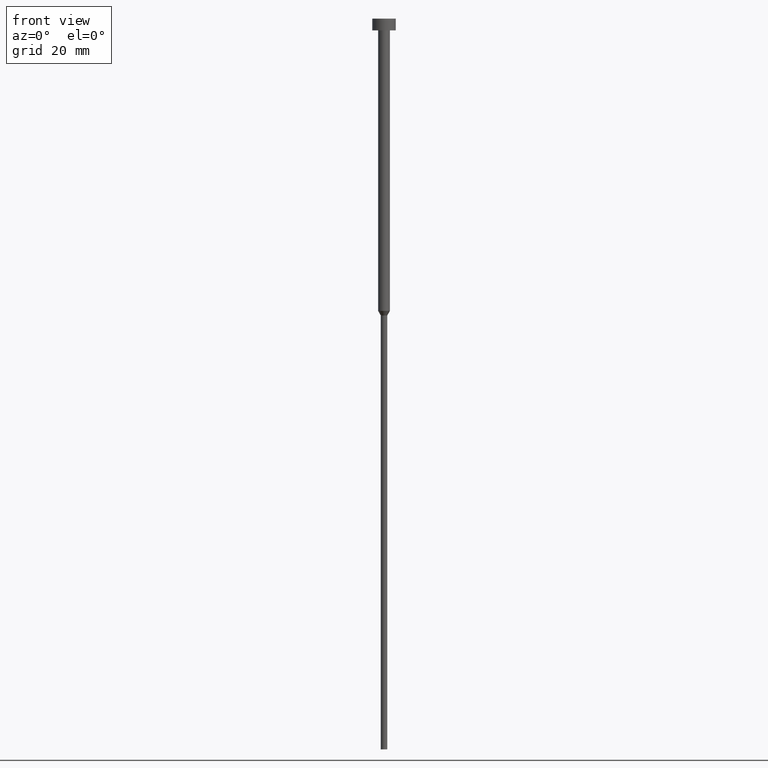
[diagram: clean part render]
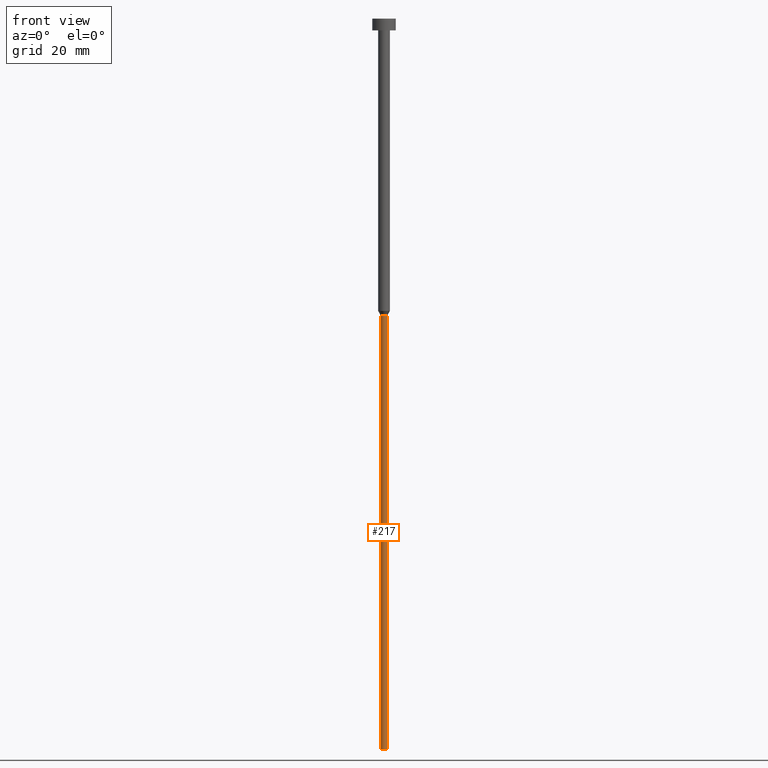
[diagram: same view with one face highlighted and labeled with its STEP entity id]
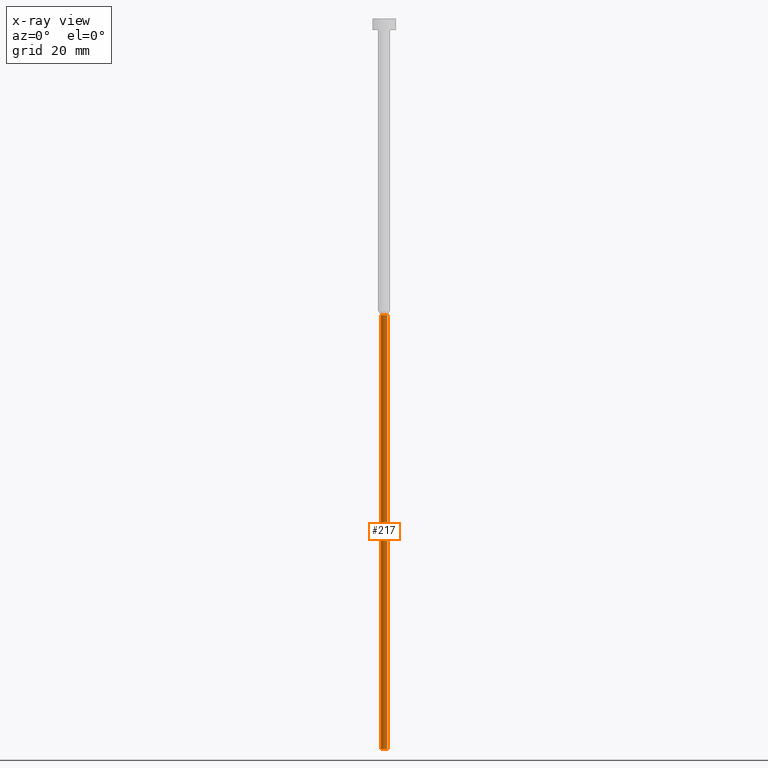
[diagram: x-ray of the same camera — body ghosted, the highlighted face saturated]
A machine part, front view. The second image highlights one B-rep face of the part: STEP entity #217.
The next image is the same camera in x-ray: the body ghosted, the highlighted face saturated — about 0% of this face is hidden behind the body in this view.
In plain terms, the highlighted cylindrical surface (edge-blend (fillet) strip) has radius 0.55 mm, axis along (-0, -0, 1).
Its self-contained STEP definition (entity closure, byte-faithful):
#2 = ORIENTED_EDGE ( 'NONE', *, *, #259, .F. ) ;
#3 = LINE ( 'NONE', #186, #301 ) ;
#6 = DIRECTION ( 'NONE',  ( 1.000000000000000000, 0.000000000000000000, 0.000000000000000000 ) ) ;
#10 = ORIENTED_EDGE ( 'NONE', *, *, #316, .T. ) ;
#11 = ORIENTED_EDGE ( 'NONE', *, *, #285, .F. ) ;
#14 = DIRECTION ( 'NONE',  ( 1.000000000000000000, 0.000000000000000000, 0.000000000000000000 ) ) ;
#28 = DIRECTION ( 'NONE',  ( -0.000000000000000000, -0.000000000000000000, 1.000000000000000000 ) ) ;
#34 = ORIENTED_EDGE ( 'NONE', *, *, #335, .T. ) ;
#45 = CARTESIAN_POINT ( 'NONE',  ( -0.5499999999999999334, 6.735557395310441284E-17, -125.0000000000000000 ) ) ;
#51 = CARTESIAN_POINT ( 'NONE',  ( 0.5499999999999999334, 0.000000000000000000, 0.000000000000000000 ) ) ;
#52 = CARTESIAN_POINT ( 'NONE',  ( 0.000000000000000000, 0.000000000000000000, -50.77942286340599765 ) ) ;
#138 = AXIS2_PLACEMENT_3D ( 'NONE', #275, #141, #148 ) ;
#141 = DIRECTION ( 'NONE',  ( -0.000000000000000000, -0.000000000000000000, 1.000000000000000000 ) ) ;
#148 = DIRECTION ( 'NONE',  ( 1.000000000000000000, 0.000000000000000000, 0.000000000000000000 ) ) ;
#150 = CARTESIAN_POINT ( 'NONE',  ( 0.5500000000000000444, 0.000000000000000000, -50.77942286340599765 ) ) ;
#153 = CARTESIAN_POINT ( 'NONE',  ( 0.000000000000000000, 0.000000000000000000, -125.0000000000000000 ) ) ;
#169 = CYLINDRICAL_SURFACE ( 'NONE', #138, 0.5499999999999999334 ) ;
#174 = AXIS2_PLACEMENT_3D ( 'NONE', #52, #28, #6 ) ;
#180 = CIRCLE ( 'NONE', #174, 0.5500000000000000444 ) ;
#185 = CIRCLE ( 'NONE', #253, 0.5499999999999999334 ) ;
#186 = CARTESIAN_POINT ( 'NONE',  ( -0.5499999999999999334, 6.735557395310441284E-17, 0.000000000000000000 ) ) ;
#189 = CARTESIAN_POINT ( 'NONE',  ( -0.5500000000000000444, 6.735557395310442516E-17, -50.77942286340599765 ) ) ;
#194 = VERTEX_POINT ( 'NONE', #45 ) ;
#213 = DIRECTION ( 'NONE',  ( -0.000000000000000000, -0.000000000000000000, 1.000000000000000000 ) ) ;
#217 = ADVANCED_FACE ( 'NONE', ( #329 ), #169, .T. ) ;
#239 = DIRECTION ( 'NONE',  ( -0.000000000000000000, -0.000000000000000000, 1.000000000000000000 ) ) ;
#245 = VERTEX_POINT ( 'NONE', #189 ) ;
#250 = VECTOR ( 'NONE', #239, 1000.000000000000000 ) ;
#253 = AXIS2_PLACEMENT_3D ( 'NONE', #153, #311, #14 ) ;
#259 = EDGE_CURVE ( 'NONE', #194, #245, #3, .T. ) ;
#267 = CARTESIAN_POINT ( 'NONE',  ( 0.5499999999999999334, 0.000000000000000000, -125.0000000000000000 ) ) ;
#268 = VERTEX_POINT ( 'NONE', #267 ) ;
#275 = CARTESIAN_POINT ( 'NONE',  ( 0.000000000000000000, 0.000000000000000000, 0.000000000000000000 ) ) ;
#284 = EDGE_LOOP ( 'NONE', ( #2, #34, #10, #11 ) ) ;
#285 = EDGE_CURVE ( 'NONE', #245, #333, #180, .T. ) ;
#301 = VECTOR ( 'NONE', #213, 1000.000000000000000 ) ;
#311 = DIRECTION ( 'NONE',  ( -0.000000000000000000, -0.000000000000000000, 1.000000000000000000 ) ) ;
#316 = EDGE_CURVE ( 'NONE', #268, #333, #353, .T. ) ;
#329 = FACE_OUTER_BOUND ( 'NONE', #284, .T. ) ;
#333 = VERTEX_POINT ( 'NONE', #150 ) ;
#335 = EDGE_CURVE ( 'NONE', #194, #268, #185, .T. ) ;
#353 = LINE ( 'NONE', #51, #250 ) ;